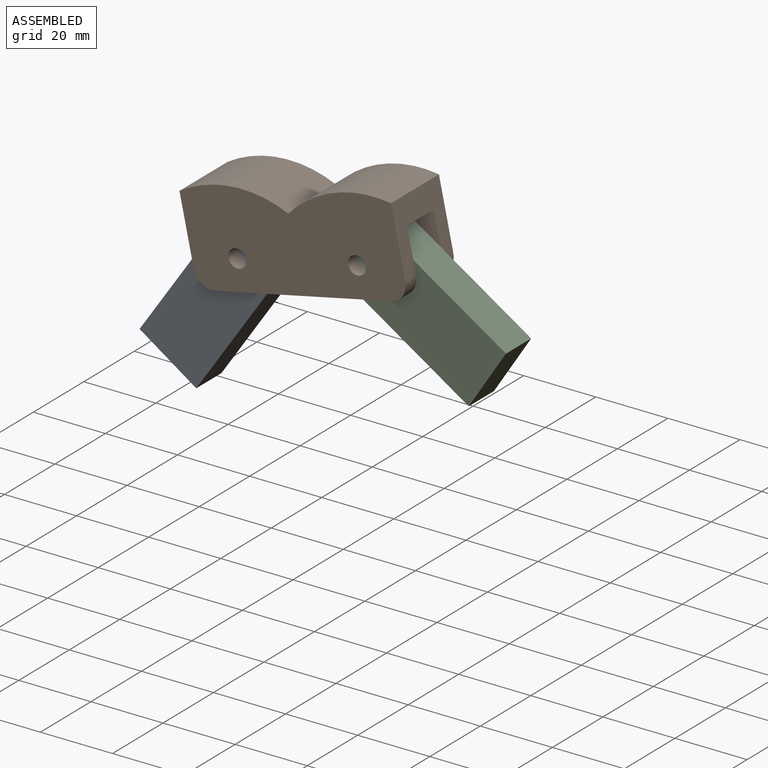
[diagram: assembled view]
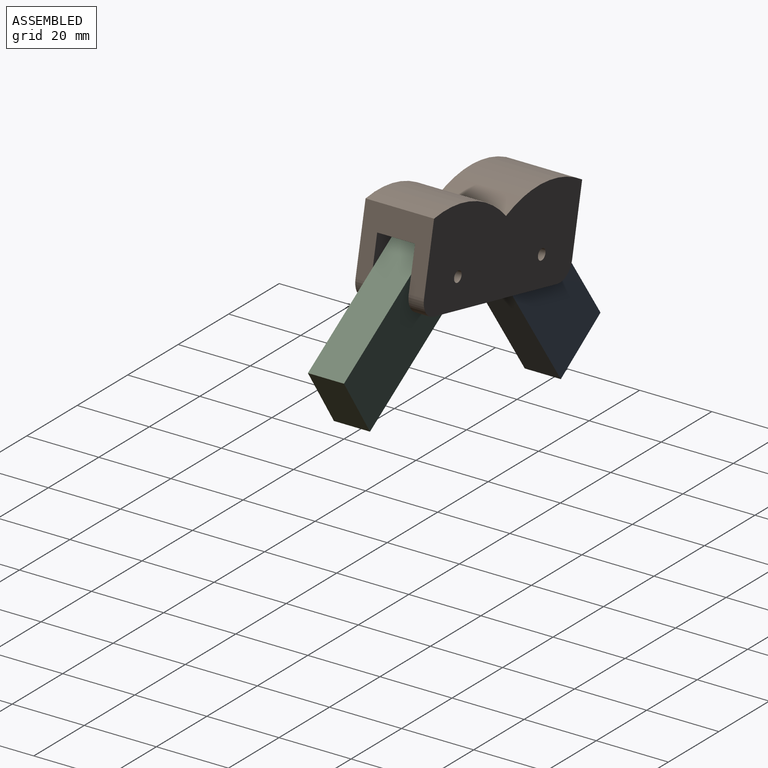
[diagram: assembled view, second angle]
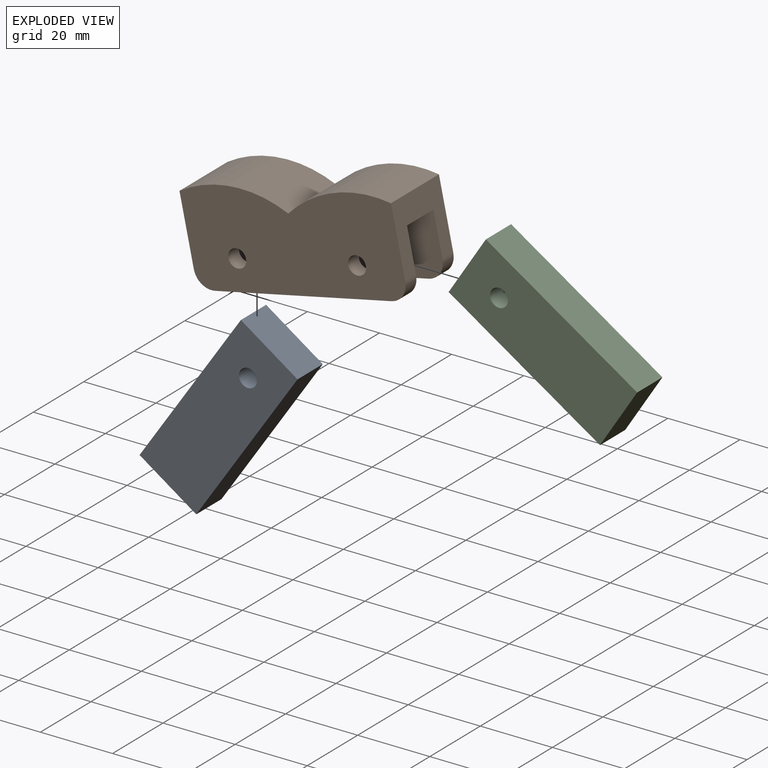
[diagram: exploded view]
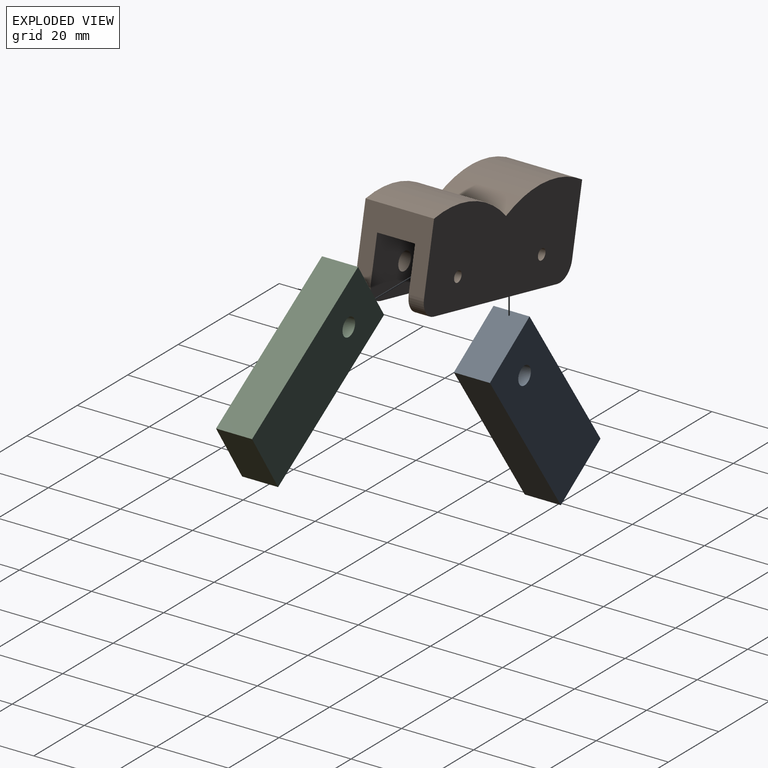
[diagram: exploded view, second angle]
ASSEMBLY  parts=3 mates=2
PART A: 7 faces, bbox 50x10x19 mm
  f0: plane 50x10mm, normal (0,0,1), area 500mm2, adj f1,f3,f4,f5
  f1: plane 19x10mm, normal (-1,0,0), area 190mm2, adj f0,f2,f4,f5
  f2: plane 50x10mm, normal (0,0,-1), area 500mm2, adj f1,f3,f4,f5
  f3: plane 19x10mm, normal (1,0,0), area 190mm2, adj f0,f2,f4,f5
  f4: plane 50x19mm, normal (0,1,0), area 930.4mm2, adj f0,f1,f2,f3,f6
  f5: plane 50x19mm, normal (0,-1,0), area 930.4mm2, adj f0,f1,f2,f3,f6
  f6: cylinder r=2.5mm len=10mm, axis (0,-1,0), area 157.1mm2, adj f4,f5
PART B: 25 faces, bbox 60x19x26.1 mm
  f0: cylinder r=5mm len=5mm, axis (0,1,0), area 33.4mm2, adj f1,f3,f6,f7
  f1: plane 50x19mm, normal (0,0,-1), area 451.2mm2, adj f0,f4,f5,f6,f7,f8,f10,f14
  f2: cylinder r=32mm len=30mm, axis (0,1,0), area 599mm2, adj f3,f5,f6,f15
  f3: plane 19x19mm, normal (-1,0,0), area 235mm2, adj f0,f2,f4,f5,f6,f7,f8,f9
  f4: cylinder r=5mm len=5mm, axis (0,1,0), area 33.4mm2, adj f1,f3,f5,f8
  f5: plane 60x26.05mm, normal (0,-1,0), area 1425.4mm2, adj f1,f2,f3,f4,f12,f15,f16,f17
  f6: plane 60x26.05mm, normal (0,1,0), area 1450.6mm2, adj f0,f1,f2,f3,f13,f14,f15,f16
  f7: plane 28.95x22.55mm, normal (0,-1,0), area 570.3mm2, adj f0,f1,f3,f9,f10,f11,f13
  f8: plane 28.95x22.55mm, normal (0,1,0), area 557.8mm2, adj f1,f3,f4,f9,f10,f11,f12
  f9: cylinder r=18.75mm len=17.55mm, axis (0,-1,0), area 200.3mm2, adj f3,f7,f8,f11
  f10: cylinder r=35.37mm len=18.2mm, axis (0,-1,0), area 195.8mm2, adj f1,f7,f8,f11
  f11: cylinder r=33.42mm len=10.5mm, axis (0,-1,0), area 96.6mm2, adj f7,f8,f9,f10
  f12: cylinder r=2.5mm len=5mm, axis (0,-1,0), area 66.8mm2, adj f5,f8
  f13: cylinder r=1.5mm len=4.25mm, axis (0,1,0), area 40.1mm2, adj f6,f7
  f14: cylinder r=5mm len=5mm, axis (0,1,0), area 33.4mm2, adj f1,f6,f16,f18
  f15: cylinder r=32mm len=30mm, axis (0,1,0), area 599mm2, adj f2,f5,f6,f16
  f16: plane 19x19mm, normal (1,0,0), area 235mm2, adj f5,f6,f14,f15,f17,f18,f19,f20
  f17: cylinder r=5mm len=5mm, axis (0,1,0), area 33.4mm2, adj f1,f5,f16,f19
  f18: plane 28.95x22.55mm, normal (0,-1,0), area 570.3mm2, adj f1,f14,f16,f20,f21,f22,f24
  f19: plane 28.95x22.55mm, normal (0,1,0), area 557.8mm2, adj f1,f16,f17,f20,f21,f22,f23
  f20: cylinder r=18.75mm len=17.55mm, axis (0,-1,0), area 200.3mm2, adj f16,f18,f19,f22
  f21: cylinder r=35.37mm len=18.2mm, axis (0,-1,0), area 195.8mm2, adj f1,f18,f19,f22
  f22: cylinder r=33.42mm len=10.5mm, axis (0,-1,0), area 96.6mm2, adj f18,f19,f20,f21
  f23: cylinder r=2.5mm len=5mm, axis (0,-1,0), area 66.8mm2, adj f5,f19
  f24: cylinder r=1.5mm len=4.25mm, axis (0,1,0), area 40.1mm2, adj f6,f18
PART C: same geometry as A
PLACE A rot(axis=(0,-1,0),55.8deg) t=(-19.09,-1.98,31.88)mm
PLACE B rot(axis=(0,-1,0),12.1deg) t=(-3.22,-1.73,40.5)mm
PLACE C rot(axis=(0,-1,0),147.1deg) t=(24.73,-1.98,54.91)mm
MATE revolute C.f6 <-> B.f23  axis (0,-1,0) through (11.67,-6.98,52.13)mm
MATE revolute A.f6 <-> B.f12  axis (0,-1,0) through (-21.57,-6.98,45)mm
